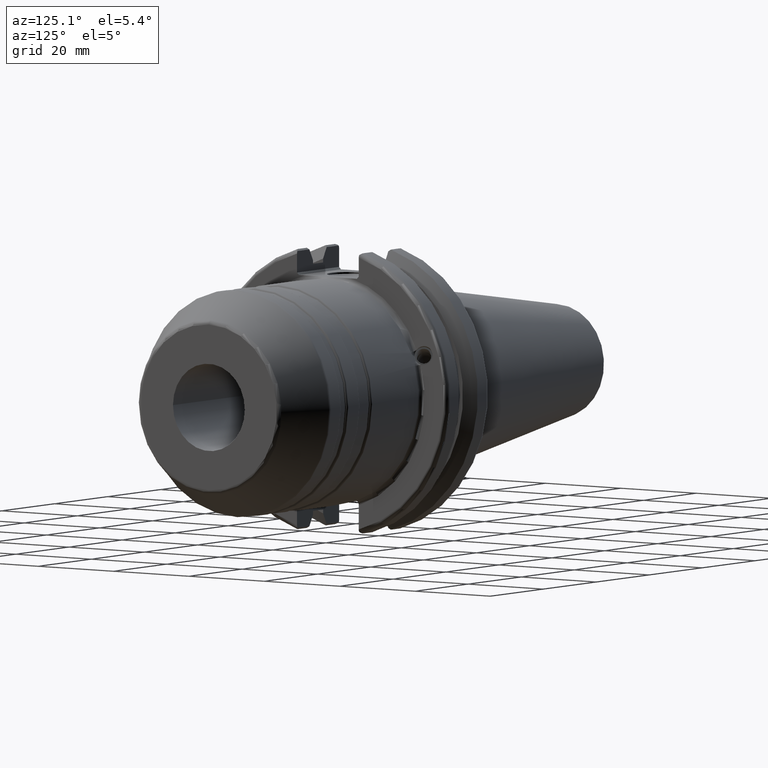
[diagram: clean part render]
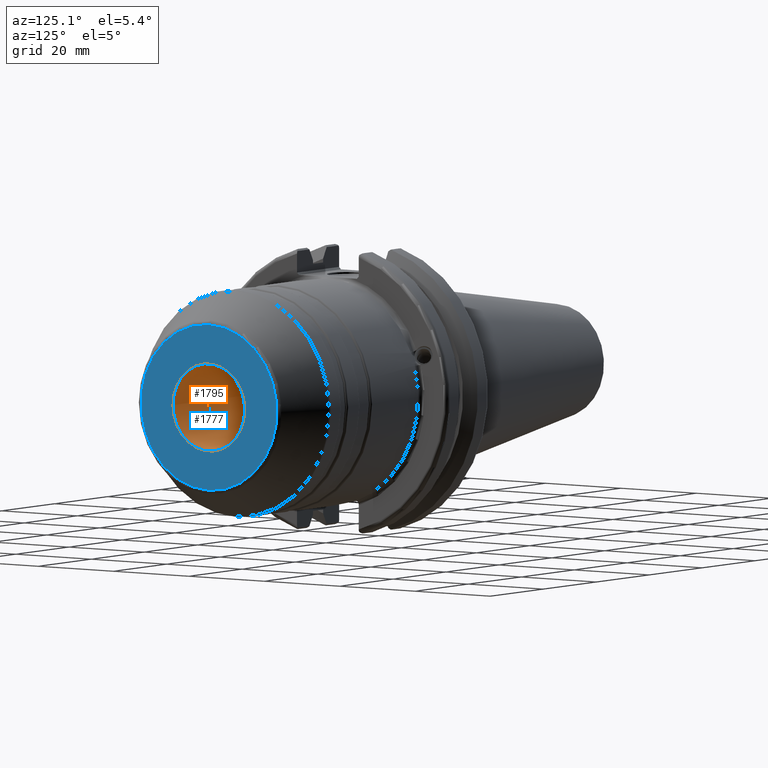
[diagram: same view with the hole feature highlighted: cylindrical wall and planar end face, labeled with their STEP entity ids]
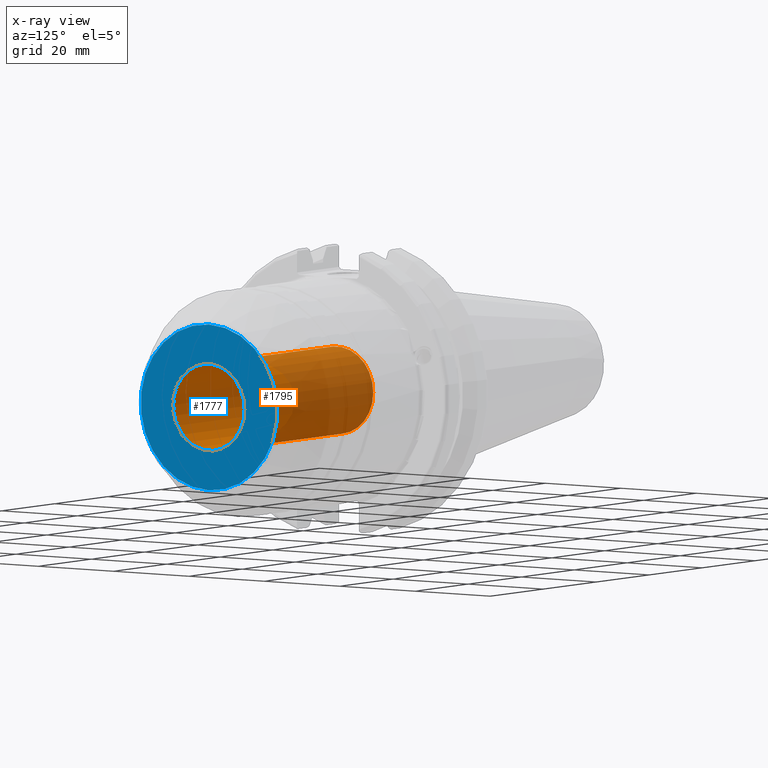
[diagram: x-ray of the same camera — body ghosted, the hole faces saturated]
A machine part, auxiliary view. The highlighted faces form one hole feature of diameter 19.05 mm: the cylindrical wall (entity #1795, orange) and its adjacent planar end face (entity #1777, blue) — they share a circular edge in the B-rep.
The next image is the same camera in x-ray (body ghosted, the hole faces saturated) — the bore reads through the body.
Wall:
#182=LINE('',#3340,#270);
#270=VECTOR('',#2389,9.52499999999999);
#344=CYLINDRICAL_SURFACE('',#2001,9.52499999999999);
#404=FACE_OUTER_BOUND('',#513,.T.);
#513=EDGE_LOOP('',(#1385,#1386,#1387,#1388));
#644=CIRCLE('',#1959,9.525);
#661=CIRCLE('',#1991,9.52499999999999);
#758=VERTEX_POINT('',#2908);
#789=VERTEX_POINT('',#3324);
#962=EDGE_CURVE('',#758,#758,#644,.T.);
#1007=EDGE_CURVE('',#789,#789,#661,.T.);
#1014=EDGE_CURVE('',#758,#789,#182,.T.);
#1385=ORIENTED_EDGE('',*,*,#962,.T.);
#1386=ORIENTED_EDGE('',*,*,#1014,.T.);
#1387=ORIENTED_EDGE('',*,*,#1007,.T.);
#1388=ORIENTED_EDGE('',*,*,#1014,.F.);
#1795=ADVANCED_FACE('',(#404),#344,.F.);
#1959=AXIS2_PLACEMENT_3D('',#2909,#2291,#2292);
#1991=AXIS2_PLACEMENT_3D('',#3325,#2366,#2367);
#2001=AXIS2_PLACEMENT_3D('',#3339,#2387,#2388);
#2291=DIRECTION('center_axis',(1.,0.,0.));
#2292=DIRECTION('ref_axis',(0.,0.,-1.));
#2366=DIRECTION('center_axis',(-1.,0.,0.));
#2367=DIRECTION('ref_axis',(0.,0.,1.));
#2387=DIRECTION('center_axis',(1.,0.,0.));
#2388=DIRECTION('ref_axis',(0.,1.,0.));
#2389=DIRECTION('',(-1.,0.,0.));
#2908=CARTESIAN_POINT('',(64.,-9.52499999999999,-1.16647607618785E-15));
#2909=CARTESIAN_POINT('Origin',(64.,0.,0.));
#3324=CARTESIAN_POINT('',(15.5,-9.52499999999999,-1.16647607618785E-15));
#3325=CARTESIAN_POINT('Origin',(15.5,0.,0.));
#3339=CARTESIAN_POINT('Origin',(41.525,0.,0.));
#3340=CARTESIAN_POINT('',(41.525,-9.52499999999999,-1.16647607618785E-15));
End face:
#63=FACE_BOUND('',#491,.T.);
#78=PLANE('',#1958);
#386=FACE_OUTER_BOUND('',#490,.T.);
#490=EDGE_LOOP('',(#1297));
#491=EDGE_LOOP('',(#1298));
#638=CIRCLE('',#1951,18.0726497308104);
#644=CIRCLE('',#1959,9.525);
#753=VERTEX_POINT('',#2894);
#758=VERTEX_POINT('',#2908);
#955=EDGE_CURVE('',#753,#753,#638,.T.);
#962=EDGE_CURVE('',#758,#758,#644,.T.);
#1297=ORIENTED_EDGE('',*,*,#955,.F.);
#1298=ORIENTED_EDGE('',*,*,#962,.F.);
#1777=ADVANCED_FACE('',(#386,#63),#78,.T.);
#1951=AXIS2_PLACEMENT_3D('',#2895,#2274,#2275);
#1958=AXIS2_PLACEMENT_3D('',#2907,#2289,#2290);
#1959=AXIS2_PLACEMENT_3D('',#2909,#2291,#2292);
#2274=DIRECTION('center_axis',(-1.,0.,0.));
#2275=DIRECTION('ref_axis',(0.,-1.,1.83697019872103E-16));
#2289=DIRECTION('center_axis',(1.,0.,0.));
#2290=DIRECTION('ref_axis',(0.,0.,-1.));
#2291=DIRECTION('center_axis',(1.,0.,0.));
#2292=DIRECTION('ref_axis',(0.,0.,-1.));
#2894=CARTESIAN_POINT('',(64.,-2.21326126449482E-15,18.0726497308104));
#2895=CARTESIAN_POINT('Origin',(64.,0.,0.));
#2907=CARTESIAN_POINT('Origin',(64.,9.525,0.));
#2908=CARTESIAN_POINT('',(64.,-9.52499999999999,-1.16647607618785E-15));
#2909=CARTESIAN_POINT('Origin',(64.,0.,0.));